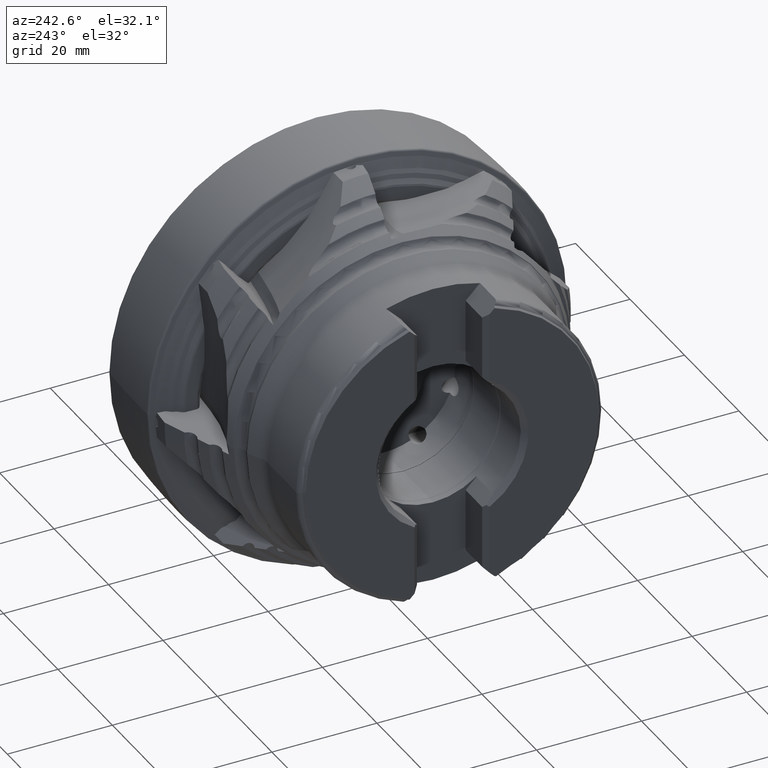
[diagram: clean part render]
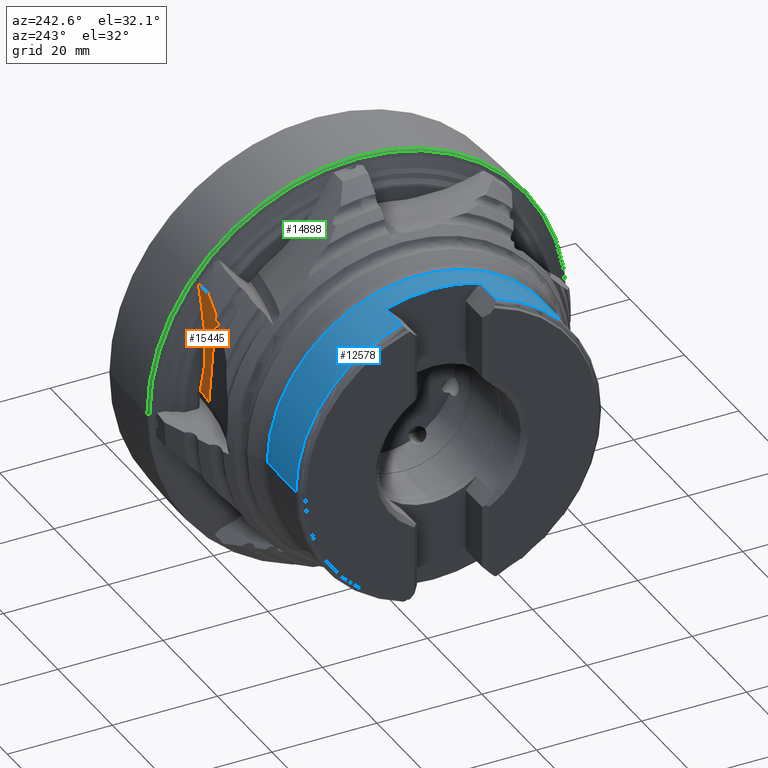
[diagram: same view with three faces highlighted in distinct colors, each labeled with its STEP entity id]
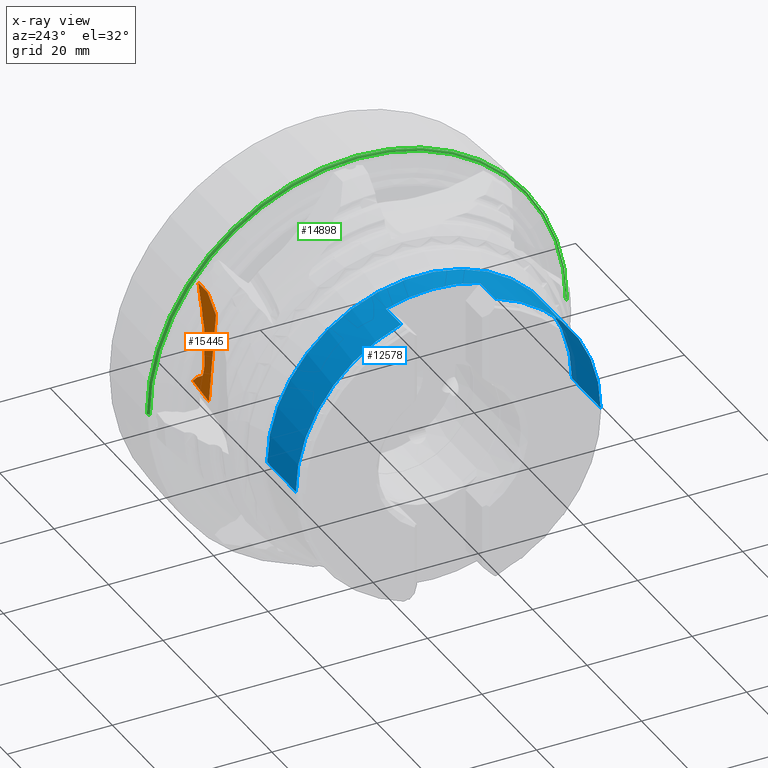
[diagram: x-ray of the same camera — body ghosted, the three highlighted faces saturated]
A machine part, auxiliary view with three faces highlighted in distinct colors.
The next image is the same camera in x-ray (body ghosted, the three faces saturated) — at least one of them is partly hidden behind the body in this view.
Their STEP definitions:

[orange] entity #15445 — the highlighted planar face has unit normal (-0, -1, 0).
#229 = CARTESIAN_POINT ( 'NONE',  ( -14.66066863347608695, 30.50000000000031264, 23.75432989986428822 ) ) ;
#233 = CARTESIAN_POINT ( 'NONE',  ( -16.38412950006048874, 30.50000000000023448, 17.36966462000995293 ) ) ;
#273 = CARTESIAN_POINT ( 'NONE',  ( -16.90507532405123925, 30.50000000000015632, 11.60565349611473529 ) ) ;
#307 = CARTESIAN_POINT ( 'NONE',  ( -16.19204355305318899, 30.50000000000024158, 17.93149600488913009 ) ) ;
#354 = CARTESIAN_POINT ( 'NONE',  ( -16.18441305593801971, 30.50000000000008171, 6.137111178178960458 ) ) ;
#564 = CARTESIAN_POINT ( 'NONE',  ( -15.93076222457986901, 30.50000000000026290, 19.49048853077003685 ) ) ;
#675 = CARTESIAN_POINT ( 'NONE',  ( -16.12767972676856232, 30.50000000000007816, 6.081054402860112340 ) ) ;
#706 = B_SPLINE_CURVE_WITH_KNOTS ( 'NONE', 3,
 ( #564, #17042, #8839, #307 ),
 .UNSPECIFIED., .F., .F.,
 ( 4, 4 ),
 ( 0.01752089941331883352, 0.01909858183466009093 ),
 .UNSPECIFIED. ) ;
#793 = VERTEX_POINT ( 'NONE', #15702 ) ;
#1036 = CARTESIAN_POINT ( 'NONE',  ( 1.458257471175435226E-14, 30.50000000000031619, 23.75432989986428822 ) ) ;
#1112 = AXIS2_PLACEMENT_3D ( 'NONE', #8640, #1745, #2912 ) ;
#1118 = LINE ( 'NONE', #10595, #13188 ) ;
#1156 = VERTEX_POINT ( 'NONE', #2949 ) ;
#1400 = VERTEX_POINT ( 'NONE', #10681 ) ;
#1555 = CARTESIAN_POINT ( 'NONE',  ( -16.47241481704796584, 30.50000000000009948, 6.701577894137823677 ) ) ;
#1562 = B_SPLINE_CURVE_WITH_KNOTS ( 'NONE', 3,
 ( #4354, #11472, #5824, #15981, #1732, #1555, #7271, #14533, #5725, #8537, #354, #675, #16925, #8954 ),
 .UNSPECIFIED., .F., .F.,
 ( 4, 2, 2, 2, 2, 2, 4 ),
 ( 0.01046544783305561159, 0.01240597353568299865, 0.01337623638699669132, 0.01386136781265354112, 0.01410393352548196429, 0.01422521638189617674, 0.01434649923831038745 ),
 .UNSPECIFIED. ) ;
#1618 = CARTESIAN_POINT ( 'NONE',  ( -15.63337513992116712, 30.50000000000027711, 20.37848093192717869 ) ) ;
#1652 = PLANE ( 'NONE',  #1112 ) ;
#1732 = CARTESIAN_POINT ( 'NONE',  ( -16.61453522812703554, 30.50000000000009592, 7.157210336118856375 ) ) ;
#1745 = DIRECTION ( 'NONE',  ( -4.781172036640786284E-16, -1.000000000000000000, 1.385080668958857329E-14 ) ) ;
#1901 = ORIENTED_EDGE ( 'NONE', *, *, #13910, .T. ) ;
#2147 = ORIENTED_EDGE ( 'NONE', *, *, #10908, .T. ) ;
#2283 = CARTESIAN_POINT ( 'NONE',  ( -12.57333711083349570, 30.50000000000003908, 3.077529461807148703 ) ) ;
#2409 = EDGE_CURVE ( 'NONE', #793, #1400, #1118, .T. ) ;
#2905 = CARTESIAN_POINT ( 'NONE',  ( -16.86108379534887192, 30.50000000000020961, 15.48777435074031139 ) ) ;
#2912 = DIRECTION ( 'NONE',  ( 0.0000000000000000000, -1.385080668958857329E-14, -1.000000000000000000 ) ) ;
#2949 = CARTESIAN_POINT ( 'NONE',  ( -16.92093801797301822, 30.50000000000012790, 9.664539101582088065 ) ) ;
#2950 = CARTESIAN_POINT ( 'NONE',  ( -15.48012883370697601, 30.50000000000028422, 20.82082623141456068 ) ) ;
#3517 = EDGE_CURVE ( 'NONE', #793, #14120, #17412, .T. ) ;
#3675 = VERTEX_POINT ( 'NONE', #17685 ) ;
#3820 = VECTOR ( 'NONE', #6601, 1000.000000000000000 ) ;
#3926 = VERTEX_POINT ( 'NONE', #17487 ) ;
#3981 = ORIENTED_EDGE ( 'NONE', *, *, #14460, .T. ) ;
#4354 = CARTESIAN_POINT ( 'NONE',  ( -16.92093801797301822, 30.50000000000012790, 9.664539101582088065 ) ) ;
#4379 = B_SPLINE_CURVE_WITH_KNOTS ( 'NONE', 3,
 ( #5491, #6939, #6834, #13857 ),
 .UNSPECIFIED., .F., .F.,
 ( 4, 4 ),
 ( 0.02080904505826884979, 0.02156734882268841746 ),
 .UNSPECIFIED. ) ;
#4492 = ORIENTED_EDGE ( 'NONE', *, *, #3517, .T. ) ;
#4505 = CARTESIAN_POINT ( 'NONE',  ( -20.10261313373561620, 30.50000000000030198, 21.91664668568879293 ) ) ;
#4671 = CARTESIAN_POINT ( 'NONE',  ( -15.21821463881687997, 30.50000000000029843, 21.80150752081283372 ) ) ;
#4794 = ORIENTED_EDGE ( 'NONE', *, *, #9849, .T. ) ;
#5001 = CARTESIAN_POINT ( 'NONE',  ( -16.05945473293465042, 30.50000000000007816, 6.039347699003928760 ) ) ;
#5124 = VECTOR ( 'NONE', #11999, 999.9999999999998863 ) ;
#5435 = EDGE_CURVE ( 'NONE', #10835, #16750, #15792, .T. ) ;
#5491 = CARTESIAN_POINT ( 'NONE',  ( -16.75003004338628898, 30.50000000000022027, 16.23860979656379300 ) ) ;
#5725 = CARTESIAN_POINT ( 'NONE',  ( -16.27819218181241467, 30.50000000000007816, 6.265474623591349435 ) ) ;
#5824 = CARTESIAN_POINT ( 'NONE',  ( -16.85289365124509686, 30.50000000000010658, 8.407137102585821253 ) ) ;
#5971 = CARTESIAN_POINT ( 'NONE',  ( -21.12345395800541326, 30.50000000000028777, 20.96584710706921584 ) ) ;
#6000 = FACE_OUTER_BOUND ( 'NONE', #17197, .T. ) ;
#6138 = CARTESIAN_POINT ( 'NONE',  ( -16.57032639679421138, 30.50000000000022737, 16.80545069776209033 ) ) ;
#6559 = CARTESIAN_POINT ( 'NONE',  ( -14.79649152733740358, 30.50000000000005684, 5.184350368177828905 ) ) ;
#6601 = DIRECTION ( 'NONE',  ( 1.000000000000000000, 1.224646799147353207E-16, -0.0000000000000000000 ) ) ;
#6773 = CARTESIAN_POINT ( 'NONE',  ( -14.66066863347608695, 30.50000000000031264, 23.75432989986428822 ) ) ;
#6834 = CARTESIAN_POINT ( 'NONE',  ( -16.82474859439416193, 30.50000000000021316, 15.73812401588347498 ) ) ;
#6870 = CARTESIAN_POINT ( 'NONE',  ( -16.05945473293465042, 30.50000000000007816, 6.039347699003928760 ) ) ;
#6939 = CARTESIAN_POINT ( 'NONE',  ( -16.78772344973696562, 30.50000000000021672, 15.98840174426874228 ) ) ;
#7078 = CARTESIAN_POINT ( 'NONE',  ( -15.78366337221426541, 30.50000000000027001, 19.93506299006526561 ) ) ;
#7251 = CARTESIAN_POINT ( 'NONE',  ( -15.48012883370697601, 30.50000000000028422, 20.82082623141456068 ) ) ;
#7271 = CARTESIAN_POINT ( 'NONE',  ( -16.41884445773441925, 30.50000000000009592, 6.551092000267381366 ) ) ;
#7341 = B_SPLINE_CURVE_WITH_KNOTS ( 'NONE', 3,
 ( #8588, #233, #6138, #16891 ),
 .UNSPECIFIED., .F., .F.,
 ( 4, 4 ),
 ( 0.02054723388899688113, 0.02232582120467168155 ),
 .UNSPECIFIED. ) ;
#8101 = CARTESIAN_POINT ( 'NONE',  ( -13.62540137204780244, 30.50000000000004619, 4.201389047992987180 ) ) ;
#8102 = EDGE_CURVE ( 'NONE', #14057, #3926, #13335, .T. ) ;
#8319 = CARTESIAN_POINT ( 'NONE',  ( -16.19204355305318899, 30.50000000000024158, 17.93149600488913009 ) ) ;
#8449 = ORIENTED_EDGE ( 'NONE', *, *, #12997, .T. ) ;
#8537 = CARTESIAN_POINT ( 'NONE',  ( -16.20926109785650482, 30.50000000000008527, 6.168043802221557570 ) ) ;
#8588 = CARTESIAN_POINT ( 'NONE',  ( -16.19204355305318899, 30.50000000000024158, 17.93149600488913009 ) ) ;
#8640 = CARTESIAN_POINT ( 'NONE',  ( -18.49250115703378228, 30.50000000000002842, 2.245645206013774597 ) ) ;
#8663 = ORIENTED_EDGE ( 'NONE', *, *, #8102, .T. ) ;
#8716 = CARTESIAN_POINT ( 'NONE',  ( -12.57333711083349570, 30.50000000000003908, 3.077529461807148703 ) ) ;
#8839 = CARTESIAN_POINT ( 'NONE',  ( -16.10757224509192653, 30.50000000000024869, 18.45143360805895938 ) ) ;
#8954 = CARTESIAN_POINT ( 'NONE',  ( -16.05945473293465042, 30.50000000000007816, 6.039347699003928760 ) ) ;
#8999 = CARTESIAN_POINT ( 'NONE',  ( -18.49250115703378228, 30.50000000000002842, 2.245645206013774597 ) ) ;
#9377 = CARTESIAN_POINT ( 'NONE',  ( -12.81305896239090281, 30.50000000000003553, 3.377066925038584966 ) ) ;
#9580 = CARTESIAN_POINT ( 'NONE',  ( -15.41832013380797051, 30.50000000000007816, 5.625294063610756901 ) ) ;
#9761 = VERTEX_POINT ( 'NONE', #8319 ) ;
#9849 = EDGE_CURVE ( 'NONE', #17306, #14057, #17692, .T. ) ;
#9904 = CARTESIAN_POINT ( 'NONE',  ( -14.94449753684185822, 30.50000000000030909, 22.77919929916763309 ) ) ;
#9917 = CARTESIAN_POINT ( 'NONE',  ( -15.93076222457986901, 30.50000000000026290, 19.49048853077003685 ) ) ;
#10289 = CARTESIAN_POINT ( 'NONE',  ( -15.48012883370697601, 30.50000000000028422, 20.82082623141456068 ) ) ;
#10595 = CARTESIAN_POINT ( 'NONE',  ( -18.49250115703378228, 30.50000000000002842, 2.245645206013774597 ) ) ;
#10658 = ORIENTED_EDGE ( 'NONE', *, *, #11626, .F. ) ;
#10681 = CARTESIAN_POINT ( 'NONE',  ( -18.49250115703378228, 30.50000000000002842, 2.245645206013774597 ) ) ;
#10835 = VERTEX_POINT ( 'NONE', #6870 ) ;
#10908 = EDGE_CURVE ( 'NONE', #9761, #3675, #7341, .T. ) ;
#11116 = CARTESIAN_POINT ( 'NONE',  ( -16.86108379534887192, 30.50000000000020961, 15.48777435074031139 ) ) ;
#11231 = ORIENTED_EDGE ( 'NONE', *, *, #2409, .F. ) ;
#11298 = CARTESIAN_POINT ( 'NONE',  ( -16.92093801797301822, 30.50000000000012790, 9.664539101582088065 ) ) ;
#11472 = CARTESIAN_POINT ( 'NONE',  ( -16.91292135411065445, 30.50000000000012079, 9.034772360215333364 ) ) ;
#11476 = CARTESIAN_POINT ( 'NONE',  ( -16.88485932848947613, 30.50000000000018474, 13.54672958429016205 ) ) ;
#11533 = CARTESIAN_POINT ( 'NONE',  ( -17.99999999999999289, 30.50000000000032685, 23.75432796319849515 ) ) ;
#11626 = EDGE_CURVE ( 'NONE', #1400, #16750, #14570, .T. ) ;
#11769 = VERTEX_POINT ( 'NONE', #11116 ) ;
#11999 = DIRECTION ( 'NONE',  ( 0.9902680687415703620, 1.454195517883915984E-15, 0.1391731009600656321 ) ) ;
#12361 = ORIENTED_EDGE ( 'NONE', *, *, #17855, .T. ) ;
#12725 = CARTESIAN_POINT ( 'NONE',  ( -19.05976105051934510, 30.50000000000031619, 22.84435618210360275 ) ) ;
#12904 = ORIENTED_EDGE ( 'NONE', *, *, #5435, .T. ) ;
#12997 = EDGE_CURVE ( 'NONE', #3926, #9761, #706, .T. ) ;
#13188 = VECTOR ( 'NONE', #16142, 999.9999999999998863 ) ;
#13335 = B_SPLINE_CURVE_WITH_KNOTS ( 'NONE', 3,
 ( #7251, #1618, #7078, #9917 ),
 .UNSPECIFIED., .F., .F.,
 ( 4, 4 ),
 ( 0.01721311044132320389, 0.01861738141565363186 ),
 .UNSPECIFIED. ) ;
#13483 = EDGE_CURVE ( 'NONE', #1156, #10835, #1562, .T. ) ;
#13702 = LINE ( 'NONE', #1036, #3820 ) ;
#13857 = CARTESIAN_POINT ( 'NONE',  ( -16.86108379534887192, 30.50000000000020961, 15.48777435074031139 ) ) ;
#13910 = EDGE_CURVE ( 'NONE', #3675, #11769, #4379, .T. ) ;
#14057 = VERTEX_POINT ( 'NONE', #10289 ) ;
#14120 = VERTEX_POINT ( 'NONE', #14312 ) ;
#14312 = CARTESIAN_POINT ( 'NONE',  ( -17.99999999999999289, 30.50000000000032685, 23.75432796319849515 ) ) ;
#14460 = EDGE_CURVE ( 'NONE', #11769, #1156, #14739, .T. ) ;
#14533 = CARTESIAN_POINT ( 'NONE',  ( -16.31614437180301991, 30.50000000000008882, 6.335706525540885536 ) ) ;
#14570 = LINE ( 'NONE', #8999, #5124 ) ;
#14739 = B_SPLINE_CURVE_WITH_KNOTS ( 'NONE', 3,
 ( #2905, #11476, #273, #11298 ),
 .UNSPECIFIED., .F., .F.,
 ( 4, 4 ),
 ( 0.02123440519501466200, 0.02705794167302968956 ),
 .UNSPECIFIED. ) ;
#15029 = CARTESIAN_POINT ( 'NONE',  ( -13.07485902949327539, 30.50000000000004619, 3.661155357434941582 ) ) ;
#15128 = CARTESIAN_POINT ( 'NONE',  ( -13.91205017864243842, 30.50000000000004619, 4.455658725905678352 ) ) ;
#15445 = ADVANCED_FACE ( 'NONE', ( #6000 ), #1652, .F. ) ;
#15471 = ORIENTED_EDGE ( 'NONE', *, *, #13483, .T. ) ;
#15702 = CARTESIAN_POINT ( 'NONE',  ( -21.12345395800541326, 30.50000000000028777, 20.96584710706921584 ) ) ;
#15792 = B_SPLINE_CURVE_WITH_KNOTS ( 'NONE', 3,
 ( #5001, #9580, #6559, #15128, #8101, #15029, #9377, #2283 ),
 .UNSPECIFIED., .F., .F.,
 ( 4, 2, 2, 4 ),
 ( 0.01514271950042987529, 0.01744055236519238827, 0.01858946879757364390, 0.01973838522995489952 ),
 .UNSPECIFIED. ) ;
#15981 = CARTESIAN_POINT ( 'NONE',  ( -16.68374618673054144, 30.50000000000010303, 7.468926084875149307 ) ) ;
#16142 = DIRECTION ( 'NONE',  ( 0.1391731009600656876, -1.378255264486798670E-14, -0.9902680687415703620 ) ) ;
#16750 = VERTEX_POINT ( 'NONE', #8716 ) ;
#16891 = CARTESIAN_POINT ( 'NONE',  ( -16.75003004338628898, 30.50000000000022027, 16.23860979656379300 ) ) ;
#16925 = CARTESIAN_POINT ( 'NONE',  ( -16.09575726211374658, 30.50000000000008882, 6.055931962591678541 ) ) ;
#17042 = CARTESIAN_POINT ( 'NONE',  ( -16.02041674981660080, 30.50000000000025580, 18.97109134829753430 ) ) ;
#17197 = EDGE_LOOP ( 'NONE', ( #15471, #12904, #10658, #11231, #4492, #12361, #4794, #8663, #8449, #2147, #1901, #3981 ) ) ;
#17306 = VERTEX_POINT ( 'NONE', #6773 ) ;
#17412 = B_SPLINE_CURVE_WITH_KNOTS ( 'NONE', 3,
 ( #5971, #4505, #12725, #11533 ),
 .UNSPECIFIED., .F., .F.,
 ( 4, 4 ),
 ( 0.03914620730606810373, 0.04336715743149520408 ),
 .UNSPECIFIED. ) ;
#17487 = CARTESIAN_POINT ( 'NONE',  ( -15.93076222457986901, 30.50000000000026290, 19.49048853077003685 ) ) ;
#17685 = CARTESIAN_POINT ( 'NONE',  ( -16.75003004338628898, 30.50000000000022027, 16.23860979656379300 ) ) ;
#17692 = B_SPLINE_CURVE_WITH_KNOTS ( 'NONE', 3,
 ( #229, #9904, #4671, #2950 ),
 .UNSPECIFIED., .F., .F.,
 ( 4, 4 ),
 ( 0.01363555849283228268, 0.01668046691258081443 ),
 .UNSPECIFIED. ) ;
#17855 = EDGE_CURVE ( 'NONE', #14120, #17306, #13702, .T. ) ;

[blue] entity #12578 — the highlighted cylindrical surface (partial cylindrical patch) has radius 29 mm, axis along (1, 0, -0).
#376 = EDGE_CURVE ( 'NONE', #10922, #11092, #12548, .T. ) ;
#490 = ORIENTED_EDGE ( 'NONE', *, *, #6114, .T. ) ;
#889 = VERTEX_POINT ( 'NONE', #2382 ) ;
#941 = CARTESIAN_POINT ( 'NONE',  ( -47.55000000000000426, 29.00000000000328271, 0.0000000000000000000 ) ) ;
#1303 = DIRECTION ( 'NONE',  ( 1.000000000000000000, 1.224646799147353207E-16, -0.0000000000000000000 ) ) ;
#1586 = LINE ( 'NONE', #11229, #17046 ) ;
#1698 = AXIS2_PLACEMENT_3D ( 'NONE', #13776, #1303, #17864 ) ;
#1856 = DIRECTION ( 'NONE',  ( 1.000000000000000000, 1.224646799147353207E-16, -0.0000000000000000000 ) ) ;
#2382 = CARTESIAN_POINT ( 'NONE',  ( -41.99999999999999289, 8.935786500728916337, 27.58897822706536118 ) ) ;
#2677 = LINE ( 'NONE', #6861, #11800 ) ;
#2988 = DIRECTION ( 'NONE',  ( 1.000000000000000000, 1.224646799147353207E-16, -0.0000000000000000000 ) ) ;
#3193 = ORIENTED_EDGE ( 'NONE', *, *, #10197, .F. ) ;
#3683 = AXIS2_PLACEMENT_3D ( 'NONE', #16849, #2988, #10196 ) ;
#3784 = CARTESIAN_POINT ( 'NONE',  ( -47.54999999999999716, -8.935786502186161329, 27.58897822659510268 ) ) ;
#3872 = VECTOR ( 'NONE', #15628, 1000.000000000000000 ) ;
#4028 = EDGE_CURVE ( 'NONE', #12111, #889, #6210, .T. ) ;
#4875 = CIRCLE ( 'NONE', #1698, 29.00000000000000000 ) ;
#5207 = CARTESIAN_POINT ( 'NONE',  ( -47.54999999999999716, -5.823195529945663710E-15, 0.0000000000000000000 ) ) ;
#5924 = EDGE_CURVE ( 'NONE', #7615, #17161, #2677, .T. ) ;
#6051 = LINE ( 'NONE', #15864, #6911 ) ;
#6114 = EDGE_CURVE ( 'NONE', #17062, #7615, #14161, .T. ) ;
#6153 = ORIENTED_EDGE ( 'NONE', *, *, #10872, .F. ) ;
#6210 = CIRCLE ( 'NONE', #11465, 29.00000000000164846 ) ;
#6291 = AXIS2_PLACEMENT_3D ( 'NONE', #12297, #15228, #17852 ) ;
#6825 = ORIENTED_EDGE ( 'NONE', *, *, #5924, .T. ) ;
#6861 = CARTESIAN_POINT ( 'NONE',  ( 3.551475717527525978E-15, -29.00000000000164846, 3.551475717527525978E-15 ) ) ;
#6911 = VECTOR ( 'NONE', #1856, 1000.000000000000000 ) ;
#7127 = DIRECTION ( 'NONE',  ( -1.000000000000000000, -1.224646799147353207E-16, 0.0000000000000000000 ) ) ;
#7615 = VERTEX_POINT ( 'NONE', #13745 ) ;
#7741 = ORIENTED_EDGE ( 'NONE', *, *, #11135, .F. ) ;
#8073 = AXIS2_PLACEMENT_3D ( 'NONE', #5207, #15045, #14954 ) ;
#8542 = FACE_OUTER_BOUND ( 'NONE', #15033, .T. ) ;
#8545 = EDGE_CURVE ( 'NONE', #10922, #10026, #8644, .T. ) ;
#8644 = CIRCLE ( 'NONE', #8073, 29.00000000000329337 ) ;
#9876 = CARTESIAN_POINT ( 'NONE',  ( -41.99999999999999289, -8.935786502184855706, 27.58897822659379884 ) ) ;
#10026 = VERTEX_POINT ( 'NONE', #11953 ) ;
#10196 = DIRECTION ( 'NONE',  ( -1.224646799147353207E-16, 1.000000000000000000, 0.0000000000000000000 ) ) ;
#10197 = EDGE_CURVE ( 'NONE', #889, #10026, #1586, .T. ) ;
#10849 = CARTESIAN_POINT ( 'NONE',  ( -41.99999999999999289, -5.143516556418882533E-15, 0.0000000000000000000 ) ) ;
#10872 = EDGE_CURVE ( 'NONE', #17062, #12111, #6051, .T. ) ;
#10922 = VERTEX_POINT ( 'NONE', #941 ) ;
#10924 = ORIENTED_EDGE ( 'NONE', *, *, #376, .F. ) ;
#11092 = VERTEX_POINT ( 'NONE', #13870 ) ;
#11135 = EDGE_CURVE ( 'NONE', #11092, #17161, #4875, .T. ) ;
#11229 = CARTESIAN_POINT ( 'NONE',  ( -2.236496810866170987E-15, 8.935786500728914561, 27.58897822706536473 ) ) ;
#11465 = AXIS2_PLACEMENT_3D ( 'NONE', #10849, #13752, #16396 ) ;
#11800 = VECTOR ( 'NONE', #15073, 1000.000000000000000 ) ;
#11953 = CARTESIAN_POINT ( 'NONE',  ( -47.54999999999999716, 8.935786500730220183, 27.58897822706666147 ) ) ;
#11988 = ORIENTED_EDGE ( 'NONE', *, *, #4028, .F. ) ;
#12111 = VERTEX_POINT ( 'NONE', #9876 ) ;
#12297 = CARTESIAN_POINT ( 'NONE',  ( -47.54999999999999716, -5.823195529945663710E-15, 0.0000000000000000000 ) ) ;
#12548 = LINE ( 'NONE', #16821, #3872 ) ;
#12578 = ADVANCED_FACE ( 'NONE', ( #8542 ), #14118, .T. ) ;
#12886 = CARTESIAN_POINT ( 'NONE',  ( -37.04999999999998295, -29.00000000000000355, 3.572702570616225189E-15 ) ) ;
#13103 = ORIENTED_EDGE ( 'NONE', *, *, #8545, .T. ) ;
#13745 = CARTESIAN_POINT ( 'NONE',  ( -47.54999999999999005, -29.00000000000329692, 3.551475717527727138E-15 ) ) ;
#13752 = DIRECTION ( 'NONE',  ( -1.000000000000000000, -0.0000000000000000000, -0.0000000000000000000 ) ) ;
#13776 = CARTESIAN_POINT ( 'NONE',  ( -37.04999999999999005, -4.537316390840942288E-15, 0.0000000000000000000 ) ) ;
#13870 = CARTESIAN_POINT ( 'NONE',  ( -37.04999999999999716, 28.99999999999999645, 0.0000000000000000000 ) ) ;
#14118 = CYLINDRICAL_SURFACE ( 'NONE', #3683, 29.00000000000164846 ) ;
#14161 = CIRCLE ( 'NONE', #6291, 29.00000000000329337 ) ;
#14954 = DIRECTION ( 'NONE',  ( -2.392722035829806815E-16, 1.000000000000000000, 0.0000000000000000000 ) ) ;
#15033 = EDGE_LOOP ( 'NONE', ( #490, #6825, #7741, #10924, #13103, #3193, #11988, #6153 ) ) ;
#15045 = DIRECTION ( 'NONE',  ( 1.000000000000000000, 1.224646799147353207E-16, -0.0000000000000000000 ) ) ;
#15073 = DIRECTION ( 'NONE',  ( 1.000000000000000000, 1.224646799147353207E-16, -0.0000000000000000000 ) ) ;
#15228 = DIRECTION ( 'NONE',  ( 1.000000000000000000, 1.224646799147353207E-16, -0.0000000000000000000 ) ) ;
#15628 = DIRECTION ( 'NONE',  ( 1.000000000000000000, 1.224646799147353207E-16, -0.0000000000000000000 ) ) ;
#15864 = CARTESIAN_POINT ( 'NONE',  ( 2.236496810735451607E-15, -8.935786502184852154, 27.58897822659379173 ) ) ;
#16396 = DIRECTION ( 'NONE',  ( 0.0000000000000000000, 0.0000000000000000000, -1.000000000000000000 ) ) ;
#16821 = CARTESIAN_POINT ( 'NONE',  ( -3.551475717527525978E-15, 29.00000000000164846, 0.0000000000000000000 ) ) ;
#16849 = CARTESIAN_POINT ( 'NONE',  ( 0.0000000000000000000, 0.0000000000000000000, 0.0000000000000000000 ) ) ;
#17046 = VECTOR ( 'NONE', #7127, 1000.000000000000000 ) ;
#17062 = VERTEX_POINT ( 'NONE', #3784 ) ;
#17161 = VERTEX_POINT ( 'NONE', #12886 ) ;
#17852 = DIRECTION ( 'NONE',  ( -2.392722035829806815E-16, 1.000000000000000000, 0.0000000000000000000 ) ) ;
#17864 = DIRECTION ( 'NONE',  ( -2.392722035830078972E-16, 1.000000000000000000, 0.0000000000000000000 ) ) ;

[green] entity #14898 — the highlighted toroidal blend (fillet) surface has major radius 39.5017 mm and minor (blend) radius 0.4297 mm.
#27 = EDGE_CURVE ( 'NONE', #17477, #11461, #15388, .T. ) ;
#107 = CARTESIAN_POINT ( 'NONE',  ( -13.94529033425017595, -3.183388900389641717E-15, 0.0000000000000000000 ) ) ;
#259 = ORIENTED_EDGE ( 'NONE', *, *, #1087, .T. ) ;
#867 = DIRECTION ( 'NONE',  ( 1.000000000000000000, 1.219777027685245115E-16, -0.0000000000000000000 ) ) ;
#1087 = EDGE_CURVE ( 'NONE', #5237, #9481, #15871, .T. ) ;
#1686 = CIRCLE ( 'NONE', #12729, 39.59947479322453034 ) ;
#1756 = AXIS2_PLACEMENT_3D ( 'NONE', #11302, #5647, #4004 ) ;
#2287 = TOROIDAL_SURFACE ( 'NONE', #17694, 39.50173532613413130, 0.4296747969863985439 ) ;
#3151 = EDGE_LOOP ( 'NONE', ( #16361, #259, #7174, #13934 ) ) ;
#4004 = DIRECTION ( 'NONE',  ( -1.000000000000000000, 0.0000000000000000000, 0.0000000000000000000 ) ) ;
#4057 = AXIS2_PLACEMENT_3D ( 'NONE', #107, #12498, #6831 ) ;
#4412 = FACE_OUTER_BOUND ( 'NONE', #3151, .T. ) ;
#4822 = AXIS2_PLACEMENT_3D ( 'NONE', #11252, #12431, #12800 ) ;
#5237 = VERTEX_POINT ( 'NONE', #11029 ) ;
#5352 = DIRECTION ( 'NONE',  ( -1.314201881490825817E-16, 1.000000000000000000, 0.0000000000000000000 ) ) ;
#5647 = DIRECTION ( 'NONE',  ( -0.0000000000000000000, 0.0000000000000000000, -1.000000000000000000 ) ) ;
#6638 = DIRECTION ( 'NONE',  ( 1.000000000000000000, 1.219777027685245115E-16, -0.0000000000000000000 ) ) ;
#6829 = CARTESIAN_POINT ( 'NONE',  ( -13.94529033425018127, 39.93107187235645483, 0.0000000000000000000 ) ) ;
#6831 = DIRECTION ( 'NONE',  ( -1.303288437777492432E-16, 1.000000000000000000, 0.0000000000000000000 ) ) ;
#7174 = ORIENTED_EDGE ( 'NONE', *, *, #16228, .F. ) ;
#8176 = CARTESIAN_POINT ( 'NONE',  ( -14.38074678838558995, -3.236504878320806955E-15, 0.0000000000000000000 ) ) ;
#9406 = CARTESIAN_POINT ( 'NONE',  ( -13.96233619131832171, 0.0000000000000000000, 0.0000000000000000000 ) ) ;
#9481 = VERTEX_POINT ( 'NONE', #14655 ) ;
#10649 = CARTESIAN_POINT ( 'NONE',  ( -14.38074678838559528, 39.59947479322453034, 0.0000000000000000000 ) ) ;
#11029 = CARTESIAN_POINT ( 'NONE',  ( -14.38074678838558462, -39.59947479322453034, 4.869841470422147866E-15 ) ) ;
#11252 = CARTESIAN_POINT ( 'NONE',  ( -13.96233619131831638, -39.50173532613413130, 4.837567372791609055E-15 ) ) ;
#11302 = CARTESIAN_POINT ( 'NONE',  ( -13.96233619131832704, 39.50173532613413130, 0.0000000000000000000 ) ) ;
#11461 = VERTEX_POINT ( 'NONE', #6829 ) ;
#11768 = EDGE_CURVE ( 'NONE', #17477, #5237, #1686, .T. ) ;
#12431 = DIRECTION ( 'NONE',  ( -1.493796032628207952E-32, 1.224646799147353207E-16, 1.000000000000000000 ) ) ;
#12498 = DIRECTION ( 'NONE',  ( 1.000000000000000000, 1.219777027685245115E-16, -0.0000000000000000000 ) ) ;
#12729 = AXIS2_PLACEMENT_3D ( 'NONE', #8176, #6638, #5352 ) ;
#12800 = DIRECTION ( 'NONE',  ( 0.0000000000000000000, -1.000000000000000000, 1.224646799147350002E-16 ) ) ;
#13934 = ORIENTED_EDGE ( 'NONE', *, *, #27, .F. ) ;
#14605 = DIRECTION ( 'NONE',  ( -1.219777027685245115E-16, 1.000000000000000000, 0.0000000000000000000 ) ) ;
#14655 = CARTESIAN_POINT ( 'NONE',  ( -13.94529033425017062, -39.93107187235645483, 4.892322888290792491E-15 ) ) ;
#14898 = ADVANCED_FACE ( 'NONE', ( #4412 ), #2287, .T. ) ;
#15388 = CIRCLE ( 'NONE', #1756, 0.4296747969863984329 ) ;
#15871 = CIRCLE ( 'NONE', #4822, 0.4296747969863984329 ) ;
#16228 = EDGE_CURVE ( 'NONE', #11461, #9481, #17425, .T. ) ;
#16361 = ORIENTED_EDGE ( 'NONE', *, *, #11768, .T. ) ;
#17425 = CIRCLE ( 'NONE', #4057, 39.93107187235645483 ) ;
#17477 = VERTEX_POINT ( 'NONE', #10649 ) ;
#17694 = AXIS2_PLACEMENT_3D ( 'NONE', #9406, #867, #14605 ) ;